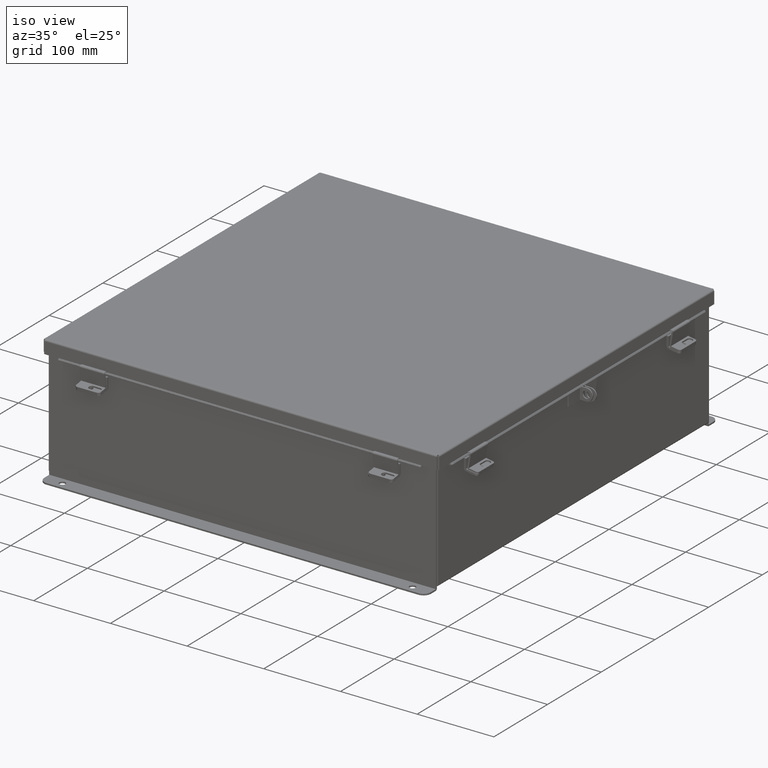
[diagram: clean part render]
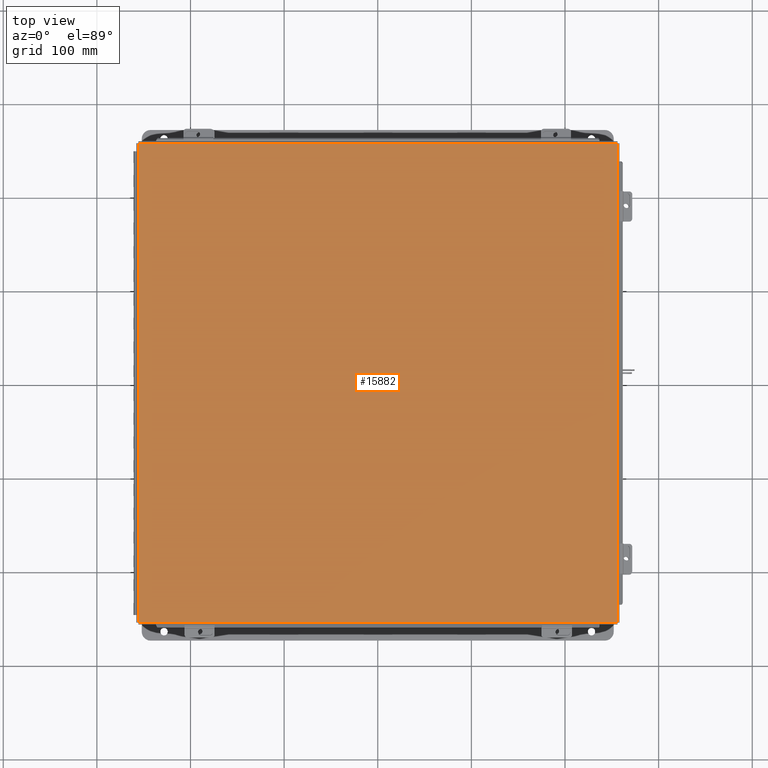
[diagram: tour spotlight — one face highlighted and labeled with its STEP entity id]
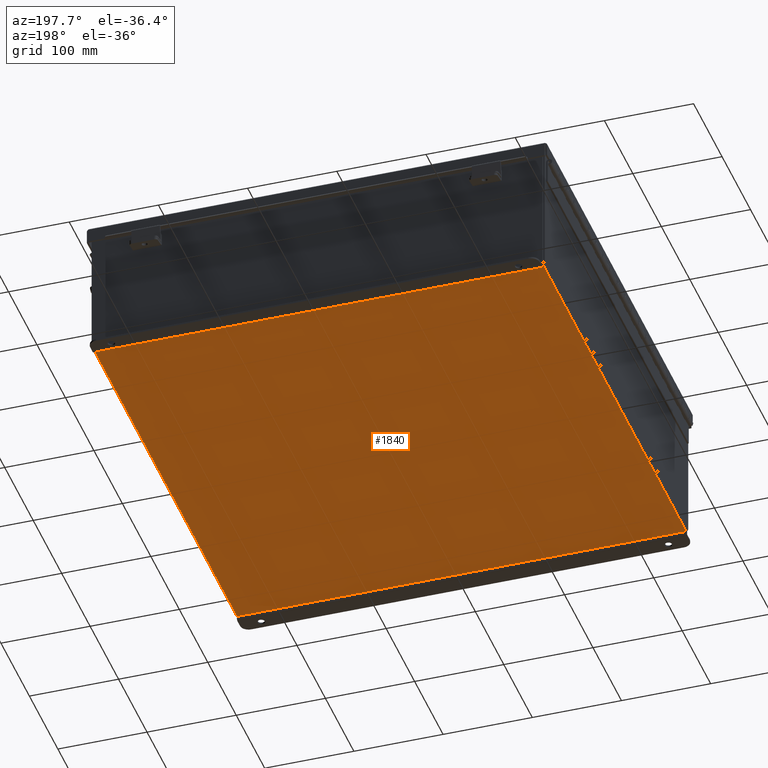
[diagram: tour spotlight — one face highlighted and labeled with its STEP entity id]
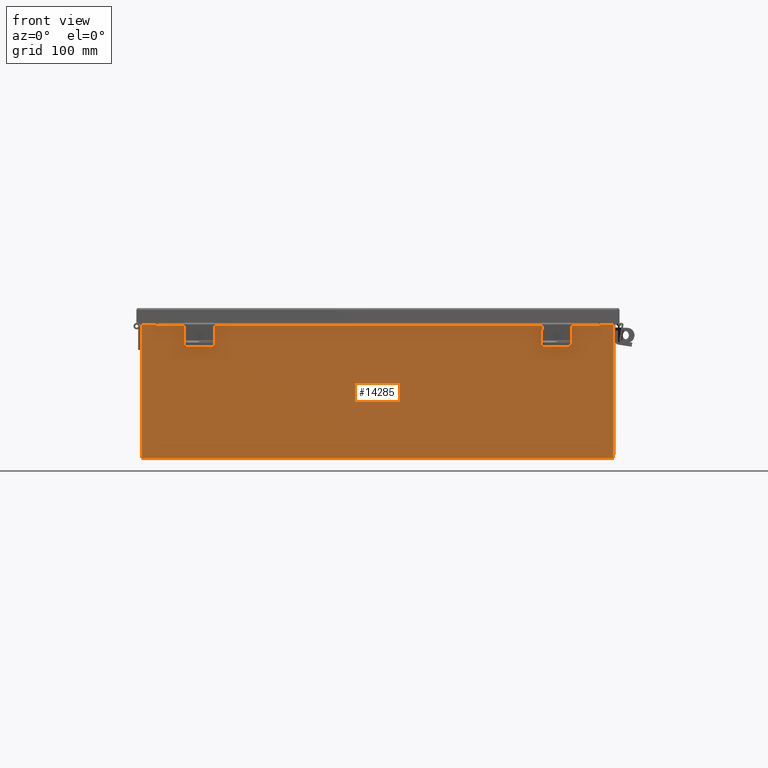
[diagram: tour spotlight — one face highlighted and labeled with its STEP entity id]
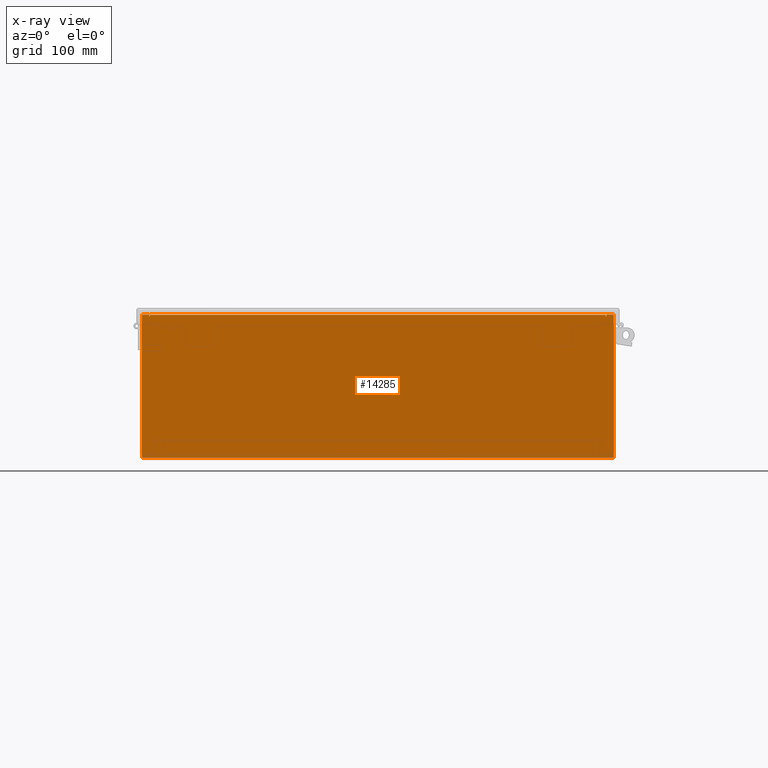
[diagram: x-ray of the same camera — body ghosted, this tour face saturated]
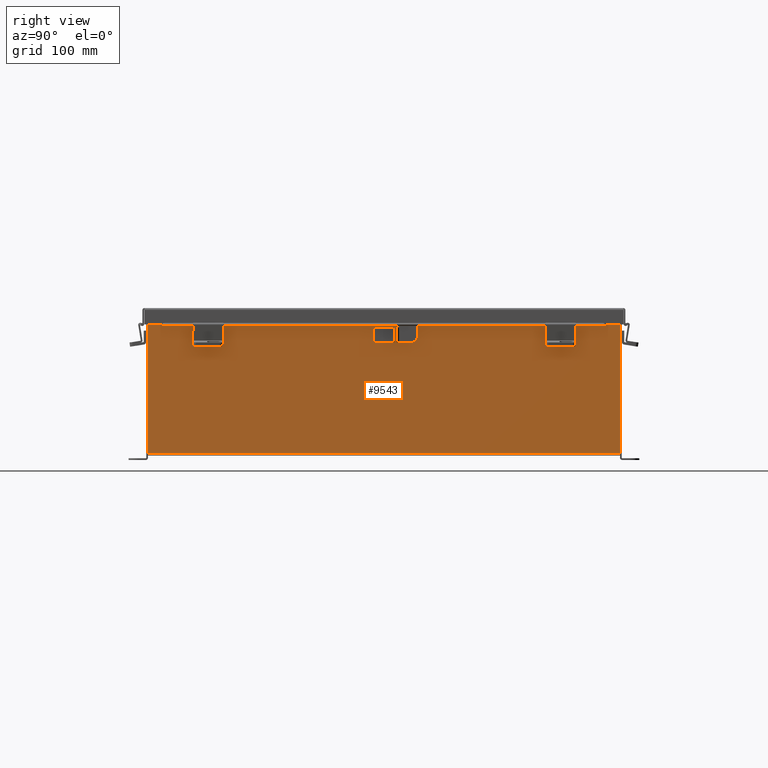
[diagram: tour spotlight — one face highlighted and labeled with its STEP entity id]
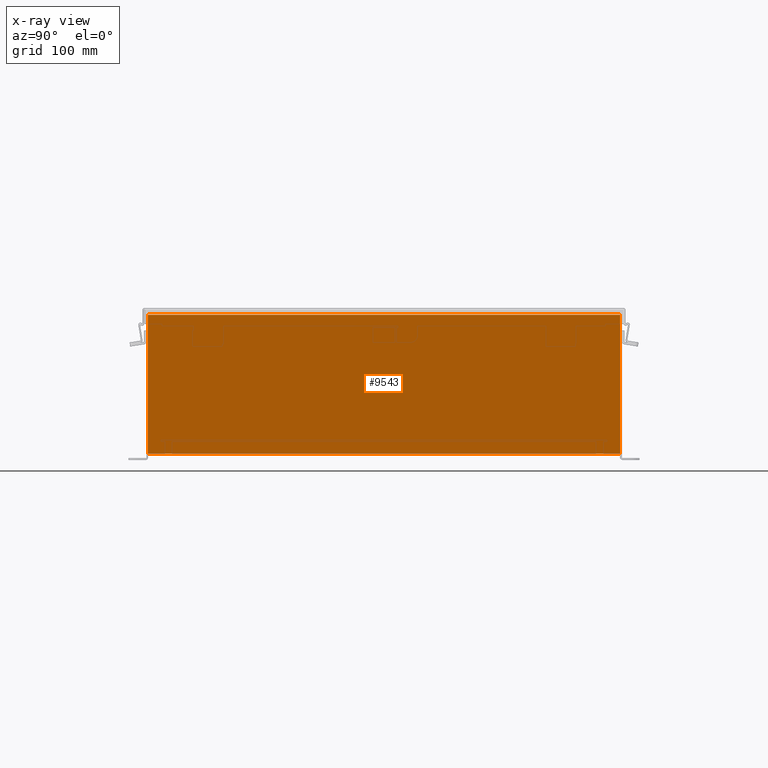
[diagram: x-ray of the same camera — body ghosted, this tour face saturated]
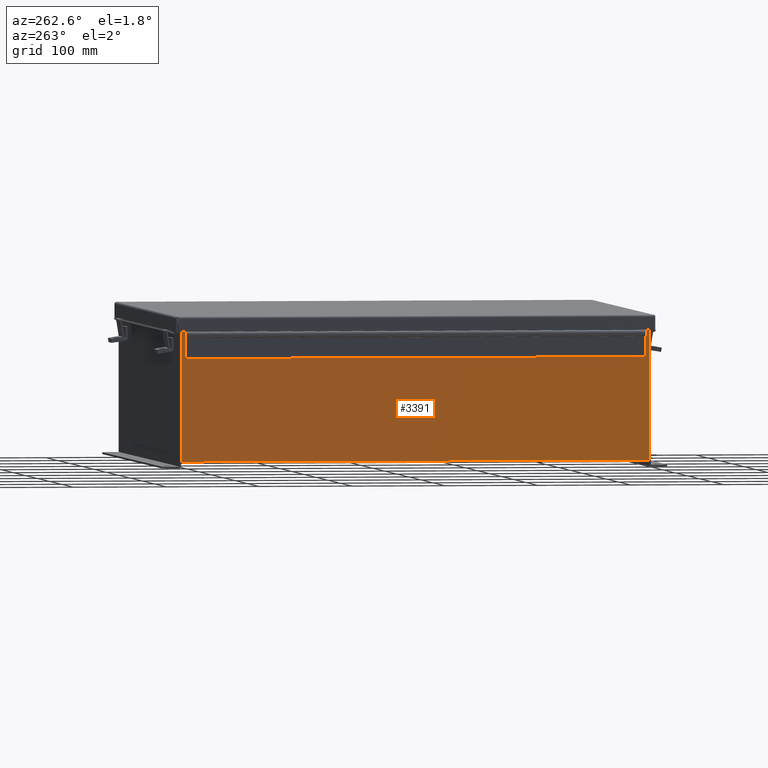
[diagram: tour spotlight — one face highlighted and labeled with its STEP entity id]
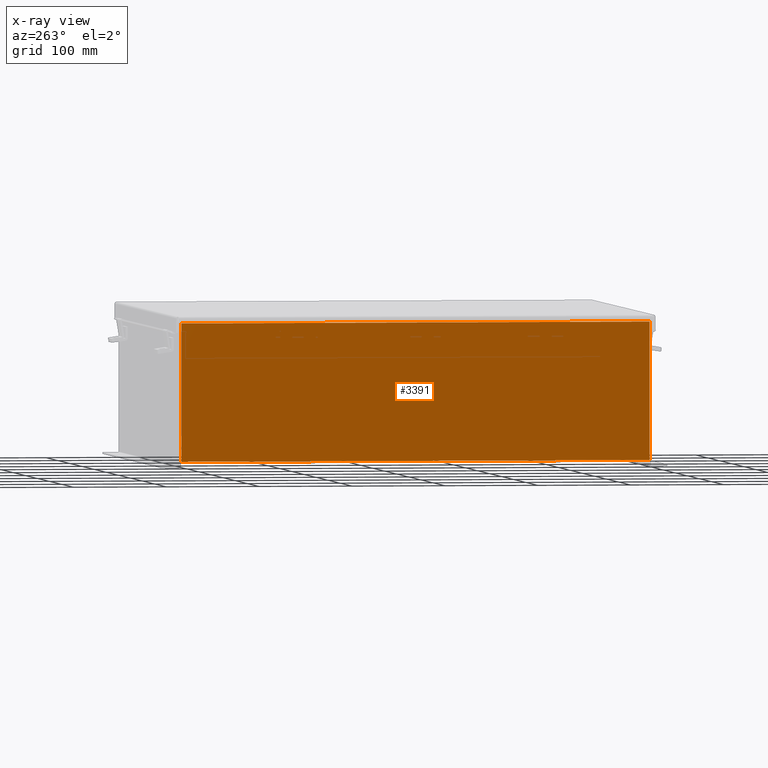
[diagram: x-ray of the same camera — body ghosted, this tour face saturated]
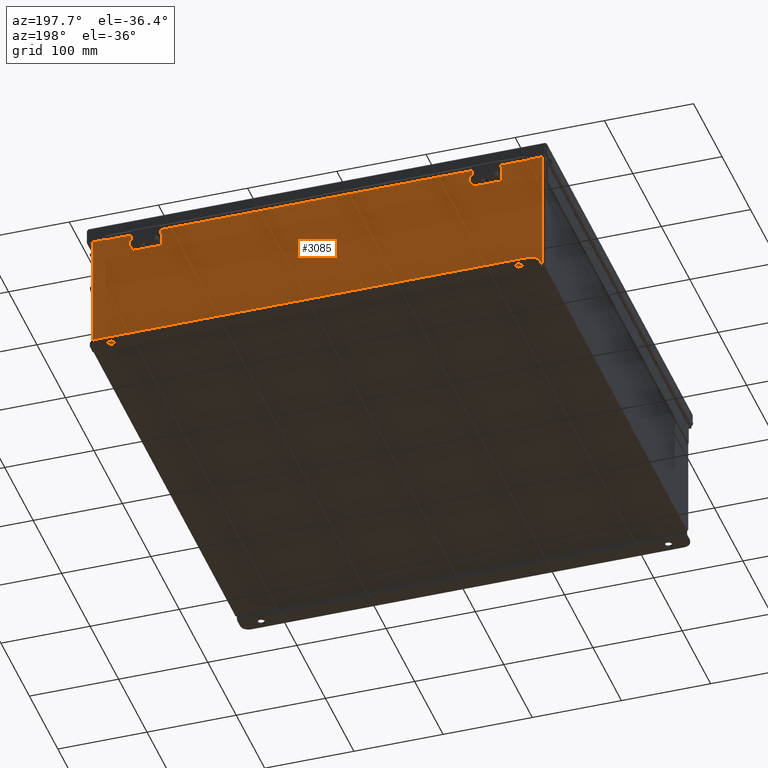
[diagram: tour spotlight — one face highlighted and labeled with its STEP entity id]
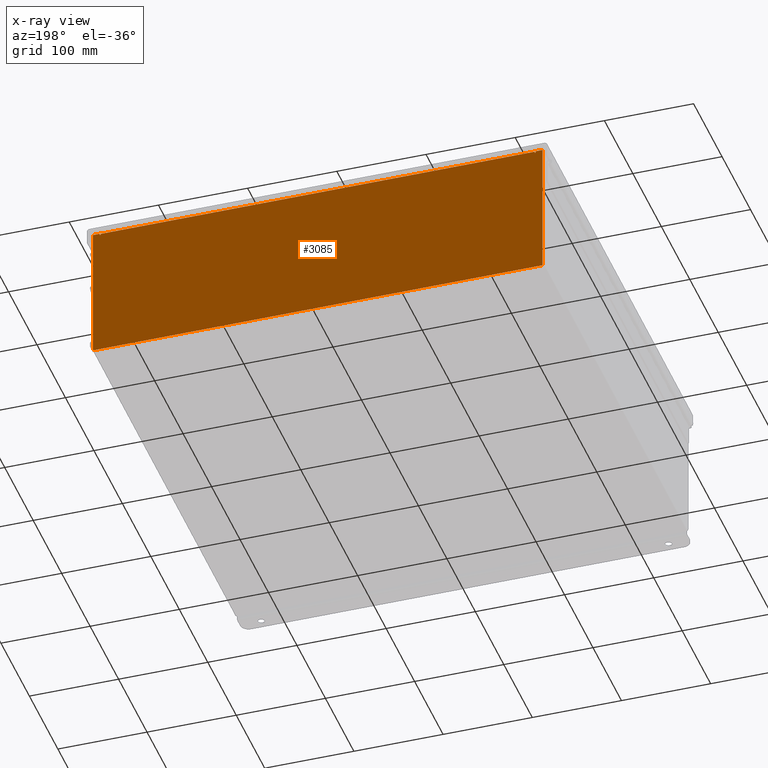
[diagram: x-ray of the same camera — body ghosted, this tour face saturated]
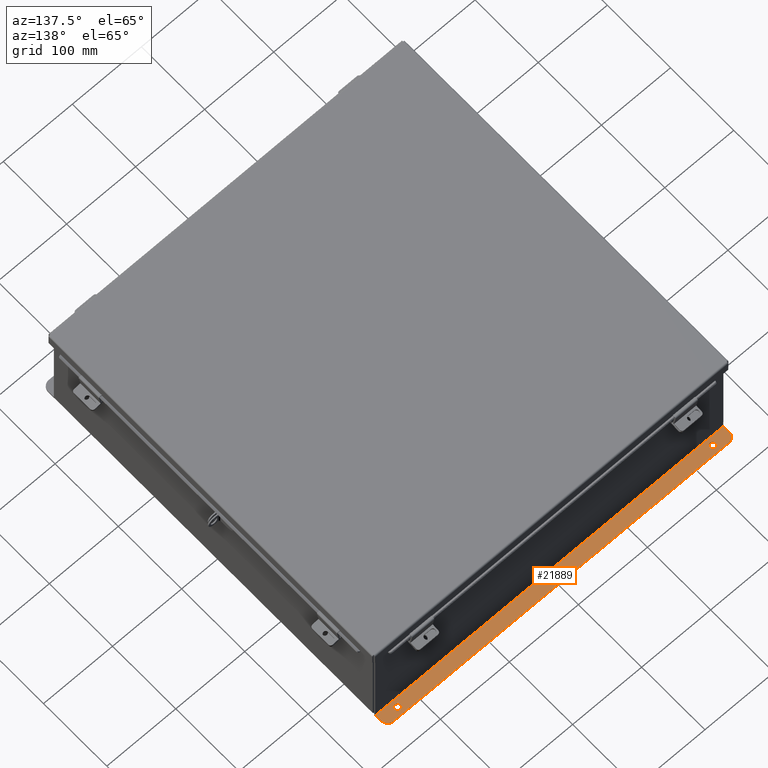
[diagram: tour spotlight — one face highlighted and labeled with its STEP entity id]
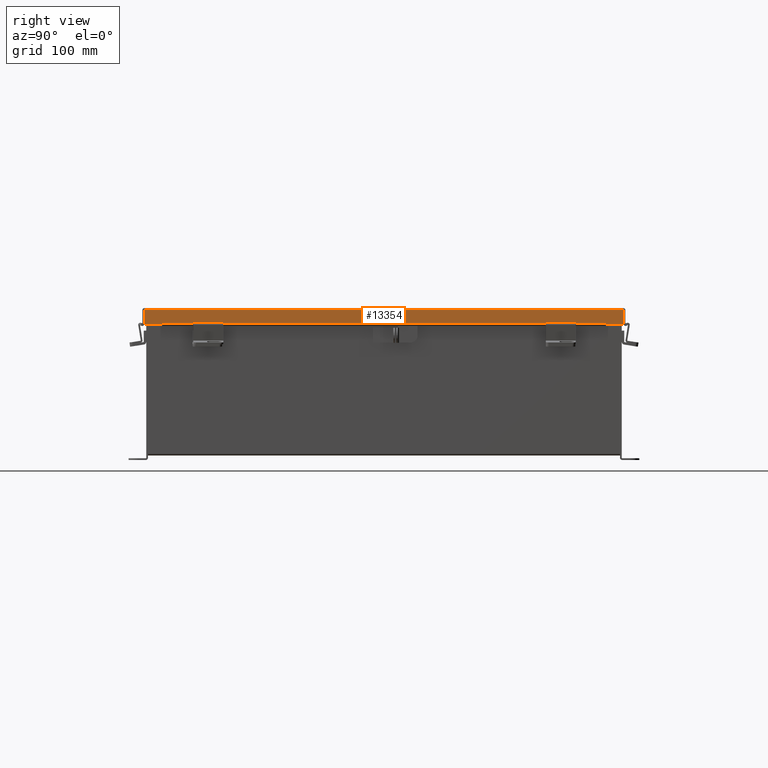
[diagram: tour spotlight — one face highlighted and labeled with its STEP entity id]
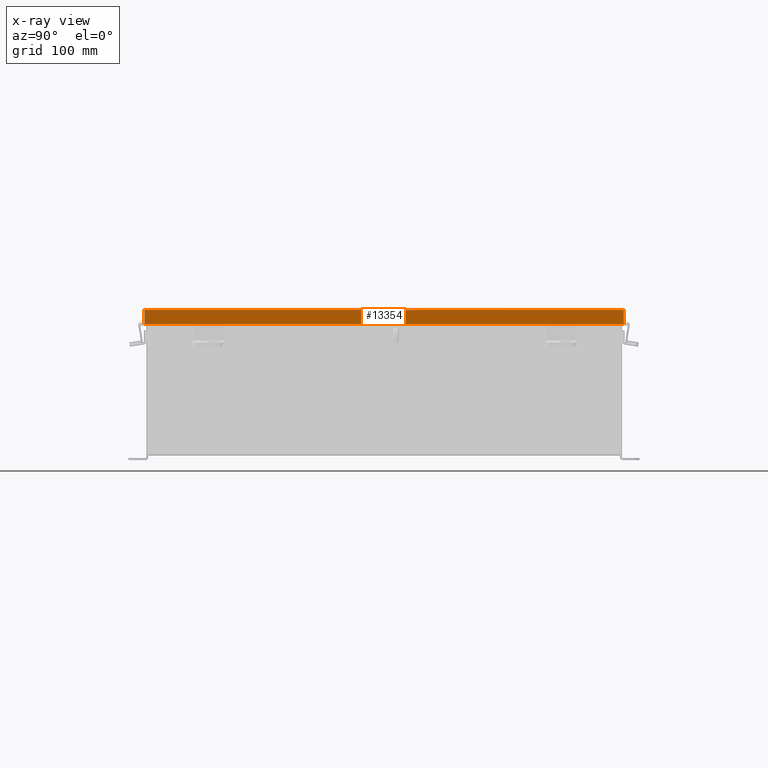
[diagram: x-ray of the same camera — body ghosted, this tour face saturated]
A machine part: a face-by-face anatomy tour. The part has 938 B-rep faces; the first image is the clean iso view, then the 8 largest visible faces are spotlighted one at a time (largest first), each with its STEP entity span.

Face 1 — top view, entity #15882. In plain terms, the highlighted planar face has unit normal (-0, -0, 1).
Definition (entity closure, byte-faithful):
#867 = EDGE_CURVE ( 'NONE', #2011, #14351, #18579, .T. ) ;
#1413 = PLANE ( 'NONE',  #20301 ) ;
#2011 = VERTEX_POINT ( 'NONE', #15025 ) ;
#2658 = EDGE_CURVE ( 'NONE', #14351, #10538, #15839, .T. ) ;
#2768 = EDGE_CURVE ( 'NONE', #10538, #10457, #13107, .T. ) ;
#3158 = DIRECTION ( 'NONE',  ( 2.258600338820354400E-033, 1.000000000000000000, -0.0000000000000000000 ) ) ;
#3527 = CARTESIAN_POINT ( 'NONE',  ( -10.06854999999999700, -10.07447893218814800, -0.07469999999999142600 ) ) ;
#4880 = DIRECTION ( 'NONE',  ( -1.000000000000000000, -2.258600338820354400E-033, 0.0000000000000000000 ) ) ;
#6913 = EDGE_CURVE ( 'NONE', #10457, #2011, #13506, .T. ) ;
#7722 = VECTOR ( 'NONE', #9290, 39.37007874015748100 ) ;
#7811 = DIRECTION ( 'NONE',  ( -2.258600338820354400E-033, -1.000000000000000000, -0.0000000000000000000 ) ) ;
#8292 = DIRECTION ( 'NONE',  ( -0.0000000000000000000, 0.0000000000000000000, -1.000000000000000000 ) ) ;
#8517 = VECTOR ( 'NONE', #3158, 39.37007874015748100 ) ;
#8902 = VECTOR ( 'NONE', #19300, 39.37007874015748100 ) ;
#9290 = DIRECTION ( 'NONE',  ( -1.000000000000000000, 8.418935186496220000E-033, -8.208677865577579800E-017 ) ) ;
#9389 = VECTOR ( 'NONE', #7811, 39.37007874015748100 ) ;
#9434 = CARTESIAN_POINT ( 'NONE',  ( 10.07447893218813400, -10.06855000000001400, -0.07469999999999797600 ) ) ;
#10457 = VERTEX_POINT ( 'NONE', #22186 ) ;
#10538 = VERTEX_POINT ( 'NONE', #18910 ) ;
#11558 = FACE_OUTER_BOUND ( 'NONE', #21979, .T. ) ;
#12597 = ORIENTED_EDGE ( 'NONE', *, *, #2658, .T. ) ;
#13107 = LINE ( 'NONE', #3527, #8517 ) ;
#13506 = LINE ( 'NONE', #14111, #8902 ) ;
#13612 = ORIENTED_EDGE ( 'NONE', *, *, #6913, .T. ) ;
#14111 = CARTESIAN_POINT ( 'NONE',  ( -10.07447893218813200, 10.06854999999998400, -0.07470000000000015500 ) ) ;
#14351 = VERTEX_POINT ( 'NONE', #19462 ) ;
#15025 = CARTESIAN_POINT ( 'NONE',  ( 10.06855000000000000, 10.06854999999998100, -0.07469999999999907300 ) ) ;
#15839 = LINE ( 'NONE', #9434, #7722 ) ;
#15882 = ADVANCED_FACE ( 'NONE', ( #11558 ), #1413, .T. ) ;
#16320 = ORIENTED_EDGE ( 'NONE', *, *, #867, .T. ) ;
#18579 = LINE ( 'NONE', #19503, #9389 ) ;
#18910 = CARTESIAN_POINT ( 'NONE',  ( -10.06854999999999700, -10.06855000000001400, -0.07469999999999142600 ) ) ;
#19300 = DIRECTION ( 'NONE',  ( 1.000000000000000000, 2.258600338820354400E-033, -0.0000000000000000000 ) ) ;
#19462 = CARTESIAN_POINT ( 'NONE',  ( 10.06855000000000000, -10.06855000000001400, -0.07469999999999797600 ) ) ;
#19503 = CARTESIAN_POINT ( 'NONE',  ( 10.06855000000000000, 10.07447893218811600, -0.07469999999999907300 ) ) ;
#20301 = AXIS2_PLACEMENT_3D ( 'NONE', #20385, #8292, #4880 ) ;
#20385 = CARTESIAN_POINT ( 'NONE',  ( 0.0000000000000000000, 0.0000000000000000000, -0.07470000000000015500 ) ) ;
#20921 = ORIENTED_EDGE ( 'NONE', *, *, #2768, .T. ) ;
#21979 = EDGE_LOOP ( 'NONE', ( #13612, #16320, #12597, #20921 ) ) ;
#22186 = CARTESIAN_POINT ( 'NONE',  ( -10.06854999999999700, 10.06854999999998400, -0.07470000000000015500 ) ) ;

Face 2 — auxiliary view, entity #1840. In plain terms, the highlighted planar face has unit normal (0, 0, -1).
Definition (entity closure, byte-faithful):
#203 = DIRECTION ( 'NONE',  ( -0.0000000000000000000, -1.000000000000000000, -0.0000000000000000000 ) ) ;
#555 = LINE ( 'NONE', #17603, #10311 ) ;
#1300 = LINE ( 'NONE', #22309, #11047 ) ;
#1840 = ADVANCED_FACE ( 'NONE', ( #3641 ), #17342, .T. ) ;
#3641 = FACE_OUTER_BOUND ( 'NONE', #17916, .T. ) ;
#3745 = DIRECTION ( 'NONE',  ( 1.000000000000000000, 0.0000000000000000000, 0.0000000000000000000 ) ) ;
#4571 = VERTEX_POINT ( 'NONE', #11816 ) ;
#4945 = LINE ( 'NONE', #10567, #13602 ) ;
#6928 = VERTEX_POINT ( 'NONE', #14061 ) ;
#7099 = DIRECTION ( 'NONE',  ( 0.0000000000000000000, 0.0000000000000000000, -1.000000000000000000 ) ) ;
#8697 = CARTESIAN_POINT ( 'NONE',  ( 9.912300000000001900, 9.925299999999998200, -0.07469999999999994700 ) ) ;
#8940 = ORIENTED_EDGE ( 'NONE', *, *, #13124, .T. ) ;
#9190 = LINE ( 'NONE', #10809, #17833 ) ;
#9373 = VERTEX_POINT ( 'NONE', #8697 ) ;
#10311 = VECTOR ( 'NONE', #19355, 39.37007874015748100 ) ;
#10567 = CARTESIAN_POINT ( 'NONE',  ( 9.912300000000001900, 9.925300000000001800, -0.07469999999999994700 ) ) ;
#10809 = CARTESIAN_POINT ( 'NONE',  ( -9.999999999999998200, -9.925299999999998200, -0.07470000000000000300 ) ) ;
#10822 = AXIS2_PLACEMENT_3D ( 'NONE', #19229, #7099, #14016 ) ;
#11047 = VECTOR ( 'NONE', #11948, 39.37007874015748100 ) ;
#11268 = EDGE_CURVE ( 'NONE', #9373, #13345, #4945, .T. ) ;
#11737 = ORIENTED_EDGE ( 'NONE', *, *, #15421, .F. ) ;
#11816 = CARTESIAN_POINT ( 'NONE',  ( -9.912299999999998300, -9.925299999999992900, -0.07469999999999994700 ) ) ;
#11948 = DIRECTION ( 'NONE',  ( -1.000000000000000000, -0.0000000000000000000, -0.0000000000000000000 ) ) ;
#12989 = CARTESIAN_POINT ( 'NONE',  ( 9.912300000000001900, -9.925299999999998200, -0.07470000000000000300 ) ) ;
#13124 = EDGE_CURVE ( 'NONE', #4571, #6928, #555, .T. ) ;
#13345 = VERTEX_POINT ( 'NONE', #12989 ) ;
#13602 = VECTOR ( 'NONE', #203, 39.37007874015748100 ) ;
#13697 = EDGE_CURVE ( 'NONE', #4571, #13345, #9190, .T. ) ;
#14016 = DIRECTION ( 'NONE',  ( -1.000000000000000000, 0.0000000000000000000, -0.0000000000000000000 ) ) ;
#14061 = CARTESIAN_POINT ( 'NONE',  ( -9.912299999999998300, 9.925300000000001800, -0.07470000000000000300 ) ) ;
#15421 = EDGE_CURVE ( 'NONE', #9373, #6928, #1300, .T. ) ;
#16191 = ORIENTED_EDGE ( 'NONE', *, *, #13697, .F. ) ;
#17342 = PLANE ( 'NONE',  #10822 ) ;
#17603 = CARTESIAN_POINT ( 'NONE',  ( -9.912299999999998300, -9.925299999999998200, -0.07469999999999994700 ) ) ;
#17833 = VECTOR ( 'NONE', #3745, 39.37007874015748100 ) ;
#17916 = EDGE_LOOP ( 'NONE', ( #11737, #20954, #16191, #8940 ) ) ;
#19229 = CARTESIAN_POINT ( 'NONE',  ( 0.0000000000000000000, 0.0000000000000000000, -0.07470000000000000300 ) ) ;
#19355 = DIRECTION ( 'NONE',  ( -0.0000000000000000000, 1.000000000000000000, -0.0000000000000000000 ) ) ;
#20954 = ORIENTED_EDGE ( 'NONE', *, *, #11268, .T. ) ;
#22309 = CARTESIAN_POINT ( 'NONE',  ( -9.999999999999998200, 9.925300000000001800, -0.07470000000000000300 ) ) ;

Face 3 — front view, entity #14285. An x-ray twin of the same camera follows (body ghosted, this face saturated) — the face is partly hidden behind the body. In plain terms, the highlighted planar face has unit normal (-0, 1, -0).
Definition (entity closure, byte-faithful):
#24 = AXIS2_PLACEMENT_3D ( 'NONE', #12969, #17999, #3119 ) ;
#70 = CARTESIAN_POINT ( 'NONE',  ( 9.925299999999985800, 1.748382715945128500E-014, 2.925300000000000500 ) ) ;
#765 = VECTOR ( 'NONE', #3676, 39.37007874015748100 ) ;
#1006 = ORIENTED_EDGE ( 'NONE', *, *, #7286, .T. ) ;
#1040 = CARTESIAN_POINT ( 'NONE',  ( -9.925300000000016000, 0.0000000000000000000, 2.925299999999998200 ) ) ;
#1311 = LINE ( 'NONE', #3539, #765 ) ;
#1859 = DIRECTION ( 'NONE',  ( -2.170286390199931800E-014, -7.888609052210118100E-031, -1.000000000000000000 ) ) ;
#1889 = VERTEX_POINT ( 'NONE', #14086 ) ;
#2179 = VECTOR ( 'NONE', #19343, 39.37007874015748100 ) ;
#2232 = CARTESIAN_POINT ( 'NONE',  ( -9.582299999999991200, 2.185478394931410600E-015, 2.912299999999998300 ) ) ;
#2348 = EDGE_CURVE ( 'NONE', #4368, #15765, #12595, .T. ) ;
#2516 = VERTEX_POINT ( 'NONE', #1040 ) ;
#2730 = AXIS2_PLACEMENT_3D ( 'NONE', #19307, #15844, #10707 ) ;
#2869 = CARTESIAN_POINT ( 'NONE',  ( 9.582300000000001800, 0.0000000000000000000, -4.370956789862821100E-015 ) ) ;
#2922 = LINE ( 'NONE', #19993, #15677 ) ;
#3119 = DIRECTION ( 'NONE',  ( 0.0000000000000000000, 0.0000000000000000000, -1.000000000000000000 ) ) ;
#3154 = CARTESIAN_POINT ( 'NONE',  ( 9.925299999999985800, 1.748382715945128500E-014, 2.925300000000000500 ) ) ;
#3188 = CARTESIAN_POINT ( 'NONE',  ( -9.925299999999996500, -2.185478394931410600E-015, -3.099300000000004400 ) ) ;
#3468 = FACE_OUTER_BOUND ( 'NONE', #4183, .T. ) ;
#3539 = CARTESIAN_POINT ( 'NONE',  ( -9.619649999999998300, 0.0000000000000000000, 0.0000000000000000000 ) ) ;
#3559 = VECTOR ( 'NONE', #18751, 39.37007874015748100 ) ;
#3676 = DIRECTION ( 'NONE',  ( 0.0000000000000000000, 0.0000000000000000000, 1.000000000000000000 ) ) ;
#4180 = ORIENTED_EDGE ( 'NONE', *, *, #12353, .T. ) ;
#4183 = EDGE_LOOP ( 'NONE', ( #6565, #15007, #21882, #1006, #13810, #15082, #20681, #11328, #4180, #16715, #12648, #16923 ) ) ;
#4232 = EDGE_CURVE ( 'NONE', #15765, #9834, #21183, .T. ) ;
#4281 = DIRECTION ( 'NONE',  ( 1.000000000000000000, 4.910036603141682400E-031, 0.0000000000000000000 ) ) ;
#4325 = CARTESIAN_POINT ( 'NONE',  ( 9.582300000000010700, 1.748382715945128500E-014, 2.874949999999998300 ) ) ;
#4368 = VERTEX_POINT ( 'NONE', #6146 ) ;
#4924 = VECTOR ( 'NONE', #4948, 39.37007874015748100 ) ;
#4948 = DIRECTION ( 'NONE',  ( 1.000000000000000000, 4.910036603141682400E-031, -0.0000000000000000000 ) ) ;
#5096 = CARTESIAN_POINT ( 'NONE',  ( -9.925299999999992900, -2.185478394931410600E-015, -3.099300000000004400 ) ) ;
#5200 = CARTESIAN_POINT ( 'NONE',  ( -9.925300000000016000, 0.0000000000000000000, 2.925299999999998200 ) ) ;
#6146 = CARTESIAN_POINT ( 'NONE',  ( 9.619650000000012500, 1.748382715945128500E-014, 2.925300000000001800 ) ) ;
#6172 = EDGE_CURVE ( 'NONE', #18331, #2516, #20036, .T. ) ;
#6296 = VERTEX_POINT ( 'NONE', #21909 ) ;
#6333 = LINE ( 'NONE', #16471, #16604 ) ;
#6345 = CARTESIAN_POINT ( 'NONE',  ( 9.619650000000010700, 1.748382715945128500E-014, 2.874949999999998300 ) ) ;
#6391 = CARTESIAN_POINT ( 'NONE',  ( 9.925300000000000000, 0.0000000000000000000, -3.099299999999999900 ) ) ;
#6437 = CARTESIAN_POINT ( 'NONE',  ( -9.582299999999998300, 0.0000000000000000000, 0.0000000000000000000 ) ) ;
#6565 = ORIENTED_EDGE ( 'NONE', *, *, #7939, .F. ) ;
#6842 = VERTEX_POINT ( 'NONE', #2232 ) ;
#7286 = EDGE_CURVE ( 'NONE', #6842, #6296, #2922, .T. ) ;
#7939 = EDGE_CURVE ( 'NONE', #1889, #20371, #1311, .T. ) ;
#8172 = LINE ( 'NONE', #3154, #3559 ) ;
#8245 = AXIS2_PLACEMENT_3D ( 'NONE', #20079, #9725, #21840 ) ;
#9725 = DIRECTION ( 'NONE',  ( 4.910036603141682400E-031, 1.000000000000000000, -0.0000000000000000000 ) ) ;
#9834 = VERTEX_POINT ( 'NONE', #4325 ) ;
#10386 = LINE ( 'NONE', #6437, #13874 ) ;
#10707 = DIRECTION ( 'NONE',  ( 0.0000000000000000000, 0.0000000000000000000, -1.000000000000000000 ) ) ;
#10917 = EDGE_CURVE ( 'NONE', #2516, #20371, #6333, .T. ) ;
#11056 = EDGE_CURVE ( 'NONE', #6842, #14578, #10386, .T. ) ;
#11143 = VECTOR ( 'NONE', #21952, 39.37007874015748100 ) ;
#11328 = ORIENTED_EDGE ( 'NONE', *, *, #18400, .T. ) ;
#12167 = DIRECTION ( 'NONE',  ( 1.000000000000000000, 4.910036603141682400E-031, 0.0000000000000000000 ) ) ;
#12353 = EDGE_CURVE ( 'NONE', #13572, #14627, #8172, .T. ) ;
#12595 = LINE ( 'NONE', #16606, #22360 ) ;
#12648 = ORIENTED_EDGE ( 'NONE', *, *, #6172, .T. ) ;
#12742 = EDGE_CURVE ( 'NONE', #9834, #6296, #15206, .T. ) ;
#12969 = CARTESIAN_POINT ( 'NONE',  ( 9.600975000000010700, 1.748382715945128500E-014, 2.874949999999998300 ) ) ;
#13089 = CARTESIAN_POINT ( 'NONE',  ( -9.582299999999991200, 0.0000000000000000000, 2.874949999999998300 ) ) ;
#13572 = VERTEX_POINT ( 'NONE', #70 ) ;
#13810 = ORIENTED_EDGE ( 'NONE', *, *, #12742, .F. ) ;
#13874 = VECTOR ( 'NONE', #18503, 39.37007874015748100 ) ;
#13908 = EDGE_CURVE ( 'NONE', #14578, #1889, #18092, .T. ) ;
#14086 = CARTESIAN_POINT ( 'NONE',  ( -9.619649999999991200, 0.0000000000000000000, 2.874949999999998300 ) ) ;
#14285 = ADVANCED_FACE ( 'NONE', ( #3468 ), #21069, .F. ) ;
#14415 = CARTESIAN_POINT ( 'NONE',  ( -9.619649999999991200, 0.0000000000000000000, 2.925299999999999600 ) ) ;
#14578 = VERTEX_POINT ( 'NONE', #13089 ) ;
#14627 = VERTEX_POINT ( 'NONE', #6391 ) ;
#15007 = ORIENTED_EDGE ( 'NONE', *, *, #13908, .F. ) ;
#15082 = ORIENTED_EDGE ( 'NONE', *, *, #4232, .F. ) ;
#15206 = LINE ( 'NONE', #2869, #11143 ) ;
#15677 = VECTOR ( 'NONE', #19847, 39.37007874015748100 ) ;
#15765 = VERTEX_POINT ( 'NONE', #6345 ) ;
#15844 = DIRECTION ( 'NONE',  ( -4.910036603141682400E-031, -1.000000000000000000, -0.0000000000000000000 ) ) ;
#16471 = CARTESIAN_POINT ( 'NONE',  ( -9.925300000000016000, 0.0000000000000000000, 2.925299999999998200 ) ) ;
#16604 = VECTOR ( 'NONE', #4281, 39.37007874015748100 ) ;
#16606 = CARTESIAN_POINT ( 'NONE',  ( 9.619649999999939600, 0.0000000000000000000, -2.087131867159497100E-013 ) ) ;
#16715 = ORIENTED_EDGE ( 'NONE', *, *, #20730, .F. ) ;
#16923 = ORIENTED_EDGE ( 'NONE', *, *, #10917, .T. ) ;
#17675 = VECTOR ( 'NONE', #12167, 39.37007874015748100 ) ;
#17951 = CARTESIAN_POINT ( 'NONE',  ( -9.925300000000016000, 0.0000000000000000000, 2.925299999999998200 ) ) ;
#17999 = DIRECTION ( 'NONE',  ( 4.910036603141682400E-031, 1.000000000000000000, -0.0000000000000000000 ) ) ;
#18092 = CIRCLE ( 'NONE', #8245, 0.01867500000000003900 ) ;
#18331 = VERTEX_POINT ( 'NONE', #5096 ) ;
#18400 = EDGE_CURVE ( 'NONE', #4368, #13572, #22308, .T. ) ;
#18503 = DIRECTION ( 'NONE',  ( 0.0000000000000000000, 0.0000000000000000000, -1.000000000000000000 ) ) ;
#18724 = LINE ( 'NONE', #3188, #4924 ) ;
#18751 = DIRECTION ( 'NONE',  ( -3.735477378271307500E-016, 0.0000000000000000000, -1.000000000000000000 ) ) ;
#19307 = CARTESIAN_POINT ( 'NONE',  ( 0.0000000000000000000, 0.0000000000000000000, 0.0000000000000000000 ) ) ;
#19343 = DIRECTION ( 'NONE',  ( 0.0000000000000000000, 0.0000000000000000000, 1.000000000000000000 ) ) ;
#19847 = DIRECTION ( 'NONE',  ( 1.000000000000000000, 4.910036603141682400E-031, -0.0000000000000000000 ) ) ;
#19993 = CARTESIAN_POINT ( 'NONE',  ( -9.582299999999989400, 2.185478394931410600E-015, 2.912299999999998300 ) ) ;
#20036 = LINE ( 'NONE', #17951, #2179 ) ;
#20079 = CARTESIAN_POINT ( 'NONE',  ( -9.600974999999989400, 0.0000000000000000000, 2.874949999999998300 ) ) ;
#20371 = VERTEX_POINT ( 'NONE', #14415 ) ;
#20681 = ORIENTED_EDGE ( 'NONE', *, *, #2348, .F. ) ;
#20730 = EDGE_CURVE ( 'NONE', #18331, #14627, #18724, .T. ) ;
#21069 = PLANE ( 'NONE',  #2730 ) ;
#21183 = CIRCLE ( 'NONE', #24, 0.01867500000000003900 ) ;
#21840 = DIRECTION ( 'NONE',  ( 0.0000000000000000000, 0.0000000000000000000, -1.000000000000000000 ) ) ;
#21882 = ORIENTED_EDGE ( 'NONE', *, *, #11056, .F. ) ;
#21909 = CARTESIAN_POINT ( 'NONE',  ( 9.582300000000010700, 1.748382715945128500E-014, 2.912299999999998300 ) ) ;
#21952 = DIRECTION ( 'NONE',  ( 0.0000000000000000000, 0.0000000000000000000, 1.000000000000000000 ) ) ;
#22308 = LINE ( 'NONE', #5200, #17675 ) ;
#22360 = VECTOR ( 'NONE', #1859, 39.37007874015748100 ) ;

Face 4 — right view, entity #9543. An x-ray twin of the same camera follows (body ghosted, this face saturated) — the face is partly hidden behind the body. In plain terms, the highlighted planar face has unit normal (-1, 0, 0).
Definition (entity closure, byte-faithful):
#849 = DIRECTION ( 'NONE',  ( -1.000000000000000000, 0.0000000000000000000, 3.361929640444175900E-015 ) ) ;
#982 = CARTESIAN_POINT ( 'NONE',  ( 10.00000000000002300, -9.925299999999998200, 5.837599999999999200 ) ) ;
#994 = EDGE_LOOP ( 'NONE', ( #9827, #11231, #13638, #21794 ) ) ;
#1083 = VERTEX_POINT ( 'NONE', #15990 ) ;
#1376 = EDGE_CURVE ( 'NONE', #6573, #17513, #8283, .T. ) ;
#3565 = CARTESIAN_POINT ( 'NONE',  ( 10.00000000000000200, -9.925299999999998200, -3.388345214641706500E-014 ) ) ;
#3671 = VECTOR ( 'NONE', #7037, 39.37007874015748100 ) ;
#3928 = PLANE ( 'NONE',  #6749 ) ;
#4144 = LINE ( 'NONE', #4695, #17420 ) ;
#4498 = EDGE_CURVE ( 'NONE', #1083, #6573, #11160, .T. ) ;
#4555 = LINE ( 'NONE', #3565, #17811 ) ;
#4695 = CARTESIAN_POINT ( 'NONE',  ( 10.00000000000000200, -9.925299999999998200, 0.01299999999999985900 ) ) ;
#6112 = FACE_OUTER_BOUND ( 'NONE', #994, .T. ) ;
#6467 = DIRECTION ( 'NONE',  ( -0.0000000000000000000, -1.000000000000000000, -0.0000000000000000000 ) ) ;
#6573 = VERTEX_POINT ( 'NONE', #9123 ) ;
#6749 = AXIS2_PLACEMENT_3D ( 'NONE', #11227, #849, #12941 ) ;
#7037 = DIRECTION ( 'NONE',  ( -0.0000000000000000000, -1.000000000000000000, -0.0000000000000000000 ) ) ;
#8283 = LINE ( 'NONE', #16656, #3671 ) ;
#9123 = CARTESIAN_POINT ( 'NONE',  ( 10.00000000000002300, 9.925299999999996500, 5.837599999999999200 ) ) ;
#9543 = ADVANCED_FACE ( 'NONE', ( #6112 ), #3928, .F. ) ;
#9827 = ORIENTED_EDGE ( 'NONE', *, *, #1376, .T. ) ;
#11160 = LINE ( 'NONE', #20336, #15755 ) ;
#11227 = CARTESIAN_POINT ( 'NONE',  ( 10.00000000000000200, 0.0000000000000000000, -3.388345214641706500E-014 ) ) ;
#11231 = ORIENTED_EDGE ( 'NONE', *, *, #14220, .T. ) ;
#12941 = DIRECTION ( 'NONE',  ( 3.361929640444175900E-015, 0.0000000000000000000, 1.000000000000000000 ) ) ;
#13638 = ORIENTED_EDGE ( 'NONE', *, *, #18199, .F. ) ;
#14220 = EDGE_CURVE ( 'NONE', #17513, #15153, #4555, .T. ) ;
#14589 = CARTESIAN_POINT ( 'NONE',  ( 10.00000000000000200, -9.925299999999998200, 0.01299999999999985900 ) ) ;
#15153 = VERTEX_POINT ( 'NONE', #14589 ) ;
#15755 = VECTOR ( 'NONE', #16880, 39.37007874015748100 ) ;
#15990 = CARTESIAN_POINT ( 'NONE',  ( 10.00000000000000200, 9.925299999999998200, 0.01299999999999985900 ) ) ;
#16656 = CARTESIAN_POINT ( 'NONE',  ( 10.00000000000002300, 9.925299999999998200, 5.837599999999999200 ) ) ;
#16880 = DIRECTION ( 'NONE',  ( 3.361929640444176300E-015, -3.735477378271307500E-016, 1.000000000000000000 ) ) ;
#17420 = VECTOR ( 'NONE', #6467, 39.37007874015748100 ) ;
#17513 = VERTEX_POINT ( 'NONE', #982 ) ;
#17811 = VECTOR ( 'NONE', #20901, 39.37007874015748100 ) ;
#18199 = EDGE_CURVE ( 'NONE', #1083, #15153, #4144, .T. ) ;
#20336 = CARTESIAN_POINT ( 'NONE',  ( 10.00000000000000200, 9.925300000000001800, -3.016984628002970700E-014 ) ) ;
#20901 = DIRECTION ( 'NONE',  ( -3.361929640444176300E-015, 0.0000000000000000000, -1.000000000000000000 ) ) ;
#21794 = ORIENTED_EDGE ( 'NONE', *, *, #4498, .T. ) ;

Face 5 — auxiliary view, entity #3391. An x-ray twin of the same camera follows (body ghosted, this face saturated) — the face is partly hidden behind the body. In plain terms, the highlighted planar face has unit normal (1, 0, 0).
Definition (entity closure, byte-faithful):
#123 = DIRECTION ( 'NONE',  ( 3.361929640444176300E-015, 0.0000000000000000000, -1.000000000000000000 ) ) ;
#186 = VECTOR ( 'NONE', #123, 39.37007874015748100 ) ;
#381 = VERTEX_POINT ( 'NONE', #18135 ) ;
#832 = DIRECTION ( 'NONE',  ( -3.361929640444176300E-015, 3.735477378271307500E-016, 1.000000000000000000 ) ) ;
#915 = EDGE_CURVE ( 'NONE', #381, #8367, #12894, .T. ) ;
#1329 = AXIS2_PLACEMENT_3D ( 'NONE', #10222, #20643, #10816 ) ;
#1372 = EDGE_CURVE ( 'NONE', #20934, #381, #16952, .T. ) ;
#1576 = VECTOR ( 'NONE', #832, 39.37007874015748100 ) ;
#2399 = DIRECTION ( 'NONE',  ( -0.0000000000000000000, 1.000000000000000000, -0.0000000000000000000 ) ) ;
#2667 = CARTESIAN_POINT ( 'NONE',  ( -9.999999999999998200, 9.925300000000001800, 0.01299999999999985900 ) ) ;
#3391 = ADVANCED_FACE ( 'NONE', ( #19046 ), #11075, .F. ) ;
#5791 = ORIENTED_EDGE ( 'NONE', *, *, #8015, .F. ) ;
#7296 = CARTESIAN_POINT ( 'NONE',  ( -10.00000000000001800, -9.925299999999991100, 5.837599999999999200 ) ) ;
#7785 = VECTOR ( 'NONE', #2399, 39.37007874015748100 ) ;
#8015 = EDGE_CURVE ( 'NONE', #20948, #8367, #21607, .T. ) ;
#8367 = VERTEX_POINT ( 'NONE', #11340 ) ;
#8982 = CARTESIAN_POINT ( 'NONE',  ( -10.00000000000001800, -9.925299999999992900, 5.837599999999999200 ) ) ;
#10186 = CARTESIAN_POINT ( 'NONE',  ( -9.999999999999998200, 9.925300000000001800, -3.388345214641706500E-014 ) ) ;
#10222 = CARTESIAN_POINT ( 'NONE',  ( -9.999999999999998200, 0.0000000000000000000, -3.388345214641706500E-014 ) ) ;
#10816 = DIRECTION ( 'NONE',  ( 3.361929640444175900E-015, 0.0000000000000000000, -1.000000000000000000 ) ) ;
#11075 = PLANE ( 'NONE',  #1329 ) ;
#11340 = CARTESIAN_POINT ( 'NONE',  ( -9.999999999999998200, 9.925300000000001800, 0.01299999999999985900 ) ) ;
#12282 = EDGE_LOOP ( 'NONE', ( #18506, #21484, #5791, #13277 ) ) ;
#12357 = VECTOR ( 'NONE', #21008, 39.37007874015748100 ) ;
#12894 = LINE ( 'NONE', #10186, #186 ) ;
#13277 = ORIENTED_EDGE ( 'NONE', *, *, #15190, .T. ) ;
#14669 = CARTESIAN_POINT ( 'NONE',  ( -9.999999999999998200, -9.925299999999998200, -3.016984628002970700E-014 ) ) ;
#15190 = EDGE_CURVE ( 'NONE', #20948, #20934, #19421, .T. ) ;
#16952 = LINE ( 'NONE', #8982, #12357 ) ;
#18135 = CARTESIAN_POINT ( 'NONE',  ( -10.00000000000001800, 9.925300000000001800, 5.837599999999999200 ) ) ;
#18506 = ORIENTED_EDGE ( 'NONE', *, *, #1372, .T. ) ;
#19046 = FACE_OUTER_BOUND ( 'NONE', #12282, .T. ) ;
#19379 = CARTESIAN_POINT ( 'NONE',  ( -9.999999999999998200, -9.925299999999992900, 0.01299999999999985900 ) ) ;
#19421 = LINE ( 'NONE', #14669, #1576 ) ;
#20643 = DIRECTION ( 'NONE',  ( 1.000000000000000000, 0.0000000000000000000, 3.361929640444175900E-015 ) ) ;
#20934 = VERTEX_POINT ( 'NONE', #7296 ) ;
#20948 = VERTEX_POINT ( 'NONE', #19379 ) ;
#21008 = DIRECTION ( 'NONE',  ( 0.0000000000000000000, 1.000000000000000000, 0.0000000000000000000 ) ) ;
#21484 = ORIENTED_EDGE ( 'NONE', *, *, #915, .T. ) ;
#21607 = LINE ( 'NONE', #2667, #7785 ) ;

Face 6 — auxiliary view, entity #3085. An x-ray twin of the same camera follows (body ghosted, this face saturated) — the face is partly hidden behind the body. In plain terms, the highlighted planar face has unit normal (0, -1, 0).
Definition (entity closure, byte-faithful):
#64 = EDGE_CURVE ( 'NONE', #15510, #2419, #13182, .T. ) ;
#241 = LINE ( 'NONE', #19827, #9439 ) ;
#315 = LINE ( 'NONE', #6755, #8966 ) ;
#783 = ORIENTED_EDGE ( 'NONE', *, *, #5493, .F. ) ;
#855 = DIRECTION ( 'NONE',  ( 1.000000000000000000, 0.0000000000000000000, 0.0000000000000000000 ) ) ;
#1216 = CARTESIAN_POINT ( 'NONE',  ( -9.619649999999998300, 0.0000000000000000000, 2.925300000000000500 ) ) ;
#1266 = CARTESIAN_POINT ( 'NONE',  ( -9.582299999999998300, 0.0000000000000000000, 0.0000000000000000000 ) ) ;
#1330 = ORIENTED_EDGE ( 'NONE', *, *, #64, .T. ) ;
#1384 = AXIS2_PLACEMENT_3D ( 'NONE', #20676, #10318, #22434 ) ;
#1836 = ORIENTED_EDGE ( 'NONE', *, *, #14509, .T. ) ;
#2333 = VERTEX_POINT ( 'NONE', #14032 ) ;
#2358 = CARTESIAN_POINT ( 'NONE',  ( 9.619650000000001800, 0.0000000000000000000, 2.874949999999998300 ) ) ;
#2419 = VERTEX_POINT ( 'NONE', #1216 ) ;
#2802 = VECTOR ( 'NONE', #15010, 39.37007874015748100 ) ;
#2859 = DIRECTION ( 'NONE',  ( 0.0000000000000000000, -1.000000000000000000, 0.0000000000000000000 ) ) ;
#2902 = VECTOR ( 'NONE', #7277, 39.37007874015748100 ) ;
#3034 = DIRECTION ( 'NONE',  ( 0.0000000000000000000, 0.0000000000000000000, -1.000000000000000000 ) ) ;
#3085 = ADVANCED_FACE ( 'NONE', ( #7182 ), #5631, .F. ) ;
#3392 = DIRECTION ( 'NONE',  ( 1.000000000000000000, -0.0000000000000000000, -0.0000000000000000000 ) ) ;
#3568 = CARTESIAN_POINT ( 'NONE',  ( -9.582299999999998300, 4.370956789862821100E-015, 2.912299999999998300 ) ) ;
#3990 = ORIENTED_EDGE ( 'NONE', *, *, #22320, .T. ) ;
#4438 = CARTESIAN_POINT ( 'NONE',  ( -9.600974999999998300, 0.0000000000000000000, 2.874949999999998300 ) ) ;
#4445 = ORIENTED_EDGE ( 'NONE', *, *, #18865, .F. ) ;
#4914 = DIRECTION ( 'NONE',  ( 0.0000000000000000000, -0.0000000000000000000, -1.000000000000000000 ) ) ;
#4952 = EDGE_CURVE ( 'NONE', #20197, #19402, #19766, .T. ) ;
#4953 = VECTOR ( 'NONE', #3034, 39.37007874015748100 ) ;
#5493 = EDGE_CURVE ( 'NONE', #14910, #14425, #315, .T. ) ;
#5631 = PLANE ( 'NONE',  #19560 ) ;
#5652 = CARTESIAN_POINT ( 'NONE',  ( -9.925299999999998200, 0.0000000000000000000, 2.925300000000000500 ) ) ;
#6202 = DIRECTION ( 'NONE',  ( 0.0000000000000000000, 0.0000000000000000000, -1.000000000000000000 ) ) ;
#6723 = VERTEX_POINT ( 'NONE', #3568 ) ;
#6755 = CARTESIAN_POINT ( 'NONE',  ( 9.619650000000001800, 0.0000000000000000000, 0.0000000000000000000 ) ) ;
#6756 = ORIENTED_EDGE ( 'NONE', *, *, #10321, .T. ) ;
#6980 = CARTESIAN_POINT ( 'NONE',  ( -9.619649999999998300, 0.0000000000000000000, 0.0000000000000000000 ) ) ;
#6981 = CARTESIAN_POINT ( 'NONE',  ( -9.925299999999998200, 0.0000000000000000000, 2.925300000000000500 ) ) ;
#7182 = FACE_OUTER_BOUND ( 'NONE', #9758, .T. ) ;
#7277 = DIRECTION ( 'NONE',  ( 0.0000000000000000000, 0.0000000000000000000, 1.000000000000000000 ) ) ;
#7342 = LINE ( 'NONE', #18907, #16525 ) ;
#7517 = DIRECTION ( 'NONE',  ( 0.0000000000000000000, 0.0000000000000000000, -1.000000000000000000 ) ) ;
#7793 = EDGE_CURVE ( 'NONE', #15640, #2419, #8061, .T. ) ;
#8025 = CARTESIAN_POINT ( 'NONE',  ( -9.925299999999998200, 0.0000000000000000000, 2.925300000000000500 ) ) ;
#8061 = LINE ( 'NONE', #6980, #2902 ) ;
#8867 = CARTESIAN_POINT ( 'NONE',  ( -9.925299999999998200, 0.0000000000000000000, 2.925300000000000500 ) ) ;
#8966 = VECTOR ( 'NONE', #15804, 39.37007874015748100 ) ;
#9344 = ORIENTED_EDGE ( 'NONE', *, *, #4952, .F. ) ;
#9439 = VECTOR ( 'NONE', #855, 39.37007874015748100 ) ;
#9448 = ORIENTED_EDGE ( 'NONE', *, *, #18991, .T. ) ;
#9549 = LINE ( 'NONE', #1266, #4953 ) ;
#9758 = EDGE_LOOP ( 'NONE', ( #20118, #12080, #4445, #1836, #9344, #22192, #783, #6756, #3990, #13526, #9448, #1330 ) ) ;
#10285 = VERTEX_POINT ( 'NONE', #18299 ) ;
#10318 = DIRECTION ( 'NONE',  ( -0.0000000000000000000, 1.000000000000000000, -0.0000000000000000000 ) ) ;
#10321 = EDGE_CURVE ( 'NONE', #14910, #17043, #21237, .T. ) ;
#10587 = VECTOR ( 'NONE', #11855, 39.37007874015748100 ) ;
#10625 = DIRECTION ( 'NONE',  ( -0.0000000000000000000, -0.0000000000000000000, 1.000000000000000000 ) ) ;
#10915 = VECTOR ( 'NONE', #10625, 39.37007874015748100 ) ;
#10924 = EDGE_CURVE ( 'NONE', #18155, #15640, #19564, .T. ) ;
#11110 = CARTESIAN_POINT ( 'NONE',  ( -9.619649999999998300, 0.0000000000000000000, 2.874949999999998300 ) ) ;
#11832 = CARTESIAN_POINT ( 'NONE',  ( 9.582300000000001800, 0.0000000000000000000, 2.912299999999998300 ) ) ;
#11855 = DIRECTION ( 'NONE',  ( 0.0000000000000000000, 0.0000000000000000000, 1.000000000000000000 ) ) ;
#12080 = ORIENTED_EDGE ( 'NONE', *, *, #10924, .F. ) ;
#12669 = AXIS2_PLACEMENT_3D ( 'NONE', #4438, #16552, #6202 ) ;
#12933 = EDGE_CURVE ( 'NONE', #10285, #2333, #7342, .T. ) ;
#12971 = VECTOR ( 'NONE', #7517, 39.37007874015748100 ) ;
#12972 = CARTESIAN_POINT ( 'NONE',  ( 9.582300000000001800, 0.0000000000000000000, 0.0000000000000000000 ) ) ;
#13182 = LINE ( 'NONE', #5652, #21872 ) ;
#13526 = ORIENTED_EDGE ( 'NONE', *, *, #12933, .F. ) ;
#13916 = CARTESIAN_POINT ( 'NONE',  ( 9.619650000000001800, 0.0000000000000000000, 2.925300000000000500 ) ) ;
#14032 = CARTESIAN_POINT ( 'NONE',  ( 9.925300000000001800, 0.0000000000000000000, -3.099299999999999900 ) ) ;
#14425 = VERTEX_POINT ( 'NONE', #2358 ) ;
#14509 = EDGE_CURVE ( 'NONE', #6723, #19402, #241, .T. ) ;
#14910 = VERTEX_POINT ( 'NONE', #13916 ) ;
#15010 = DIRECTION ( 'NONE',  ( 1.000000000000000000, 0.0000000000000000000, 0.0000000000000000000 ) ) ;
#15019 = CARTESIAN_POINT ( 'NONE',  ( -9.582299999999998300, 0.0000000000000000000, 2.874949999999998300 ) ) ;
#15510 = VERTEX_POINT ( 'NONE', #6981 ) ;
#15640 = VERTEX_POINT ( 'NONE', #11110 ) ;
#15734 = CARTESIAN_POINT ( 'NONE',  ( 0.0000000000000000000, 0.0000000000000000000, 0.0000000000000000000 ) ) ;
#15804 = DIRECTION ( 'NONE',  ( 0.0000000000000000000, 0.0000000000000000000, -1.000000000000000000 ) ) ;
#16200 = CARTESIAN_POINT ( 'NONE',  ( 9.925300000000001800, 0.0000000000000000000, 2.925300000000000500 ) ) ;
#16525 = VECTOR ( 'NONE', #3392, 39.37007874015748100 ) ;
#16552 = DIRECTION ( 'NONE',  ( -0.0000000000000000000, 1.000000000000000000, -0.0000000000000000000 ) ) ;
#16958 = CARTESIAN_POINT ( 'NONE',  ( 9.925300000000001800, 0.0000000000000000000, 2.925300000000000500 ) ) ;
#17043 = VERTEX_POINT ( 'NONE', #16958 ) ;
#17067 = DIRECTION ( 'NONE',  ( 1.000000000000000000, 0.0000000000000000000, 0.0000000000000000000 ) ) ;
#18155 = VERTEX_POINT ( 'NONE', #15019 ) ;
#18299 = CARTESIAN_POINT ( 'NONE',  ( -9.925299999999996500, 0.0000000000000000000, -3.099299999999999900 ) ) ;
#18865 = EDGE_CURVE ( 'NONE', #6723, #18155, #9549, .T. ) ;
#18907 = CARTESIAN_POINT ( 'NONE',  ( -9.925299999999998200, 0.0000000000000000000, -3.099299999999999900 ) ) ;
#18991 = EDGE_CURVE ( 'NONE', #10285, #15510, #20095, .T. ) ;
#19402 = VERTEX_POINT ( 'NONE', #11832 ) ;
#19560 = AXIS2_PLACEMENT_3D ( 'NONE', #15734, #2859, #4914 ) ;
#19564 = CIRCLE ( 'NONE', #12669, 0.01867500000000003900 ) ;
#19766 = LINE ( 'NONE', #12972, #10587 ) ;
#19827 = CARTESIAN_POINT ( 'NONE',  ( -9.582299999999998300, 4.370956789862821100E-015, 2.912299999999998300 ) ) ;
#20095 = LINE ( 'NONE', #8867, #10915 ) ;
#20118 = ORIENTED_EDGE ( 'NONE', *, *, #7793, .F. ) ;
#20197 = VERTEX_POINT ( 'NONE', #20704 ) ;
#20676 = CARTESIAN_POINT ( 'NONE',  ( 9.600975000000000000, 0.0000000000000000000, 2.874949999999998300 ) ) ;
#20704 = CARTESIAN_POINT ( 'NONE',  ( 9.582300000000000000, 0.0000000000000000000, 2.874949999999998300 ) ) ;
#20758 = EDGE_CURVE ( 'NONE', #14425, #20197, #22263, .T. ) ;
#21237 = LINE ( 'NONE', #8025, #2802 ) ;
#21872 = VECTOR ( 'NONE', #17067, 39.37007874015748100 ) ;
#22192 = ORIENTED_EDGE ( 'NONE', *, *, #20758, .F. ) ;
#22196 = LINE ( 'NONE', #16200, #12971 ) ;
#22263 = CIRCLE ( 'NONE', #1384, 0.01867500000000003900 ) ;
#22320 = EDGE_CURVE ( 'NONE', #17043, #2333, #22196, .T. ) ;
#22434 = DIRECTION ( 'NONE',  ( 0.0000000000000000000, 0.0000000000000000000, -1.000000000000000000 ) ) ;

Face 7 — auxiliary view, entity #21889. In plain terms, the highlighted planar face has unit normal (0, 0, 1).
Definition (entity closure, byte-faithful):
#85 = DIRECTION ( 'NONE',  ( -0.0000000000000000000, -3.702694488566362300E-015, -1.000000000000000000 ) ) ;
#137 = VERTEX_POINT ( 'NONE', #5824 ) ;
#396 = DIRECTION ( 'NONE',  ( 0.0000000000000000000, -1.000000000000000000, 3.502369222646487400E-015 ) ) ;
#858 = DIRECTION ( 'NONE',  ( -0.0000000000000000000, 1.000000000000000000, -3.702694488566362300E-015 ) ) ;
#1190 = ORIENTED_EDGE ( 'NONE', *, *, #14971, .T. ) ;
#1454 = ORIENTED_EDGE ( 'NONE', *, *, #7376, .F. ) ;
#1914 = EDGE_LOOP ( 'NONE', ( #1454, #18134, #7393, #13325, #6443, #10943 ) ) ;
#1969 = AXIS2_PLACEMENT_3D ( 'NONE', #11552, #21986, #11616 ) ;
#2308 = VERTEX_POINT ( 'NONE', #2914 ) ;
#2432 = CARTESIAN_POINT ( 'NONE',  ( 9.925300000000001800, 0.7378000000000011200, -3.112300000000003000 ) ) ;
#2584 = CARTESIAN_POINT ( 'NONE',  ( -9.925299999999998200, 0.7378000000000011200, -3.112300000000003000 ) ) ;
#2856 = CARTESIAN_POINT ( 'NONE',  ( 9.550300000000001800, 0.3628000000000008400, -3.112300000000001200 ) ) ;
#2914 = CARTESIAN_POINT ( 'NONE',  ( 9.925300000000001800, 0.3628000000000008400, -3.112300000000001200 ) ) ;
#3068 = EDGE_CURVE ( 'NONE', #13937, #21731, #7697, .T. ) ;
#3267 = VERTEX_POINT ( 'NONE', #6925 ) ;
#3649 = VERTEX_POINT ( 'NONE', #22312 ) ;
#3679 = VECTOR ( 'NONE', #9256, 39.37007874015748100 ) ;
#4406 = CARTESIAN_POINT ( 'NONE',  ( -8.987799999999994700, 0.2068000000000006800, -3.112300000000000700 ) ) ;
#4432 = CIRCLE ( 'NONE', #18608, 0.1560000000000001700 ) ;
#4590 = DIRECTION ( 'NONE',  ( 0.0000000000000000000, -1.000000000000000000, 4.370956789862820400E-015 ) ) ;
#4889 = CIRCLE ( 'NONE', #9154, 0.3750000000000000600 ) ;
#5050 = EDGE_CURVE ( 'NONE', #5505, #137, #4889, .T. ) ;
#5397 = VECTOR ( 'NONE', #17225, 39.37007874015748100 ) ;
#5505 = VERTEX_POINT ( 'NONE', #17635 ) ;
#5824 = CARTESIAN_POINT ( 'NONE',  ( -9.925299999999998200, 0.3628000000000008400, -3.112300000000001200 ) ) ;
#6443 = ORIENTED_EDGE ( 'NONE', *, *, #16403, .F. ) ;
#6484 = VERTEX_POINT ( 'NONE', #12826 ) ;
#6925 = CARTESIAN_POINT ( 'NONE',  ( 9.550300000000001800, 0.7378000000000011200, -3.112300000000003000 ) ) ;
#7092 = ORIENTED_EDGE ( 'NONE', *, *, #3068, .T. ) ;
#7327 = FACE_OUTER_BOUND ( 'NONE', #1914, .T. ) ;
#7376 = EDGE_CURVE ( 'NONE', #2308, #18617, #19180, .T. ) ;
#7393 = ORIENTED_EDGE ( 'NONE', *, *, #8926, .F. ) ;
#7473 = VECTOR ( 'NONE', #858, 39.37007874015748100 ) ;
#7634 = EDGE_LOOP ( 'NONE', ( #1190, #7092 ) ) ;
#7697 = CIRCLE ( 'NONE', #14943, 0.1560000000000001700 ) ;
#8007 = LINE ( 'NONE', #2584, #7473 ) ;
#8561 = AXIS2_PLACEMENT_3D ( 'NONE', #2856, #14993, #4590 ) ;
#8912 = DIRECTION ( 'NONE',  ( -0.0000000000000000000, -3.702694488566362300E-015, -1.000000000000000000 ) ) ;
#8926 = EDGE_CURVE ( 'NONE', #5505, #3267, #21564, .T. ) ;
#9154 = AXIS2_PLACEMENT_3D ( 'NONE', #21998, #21923, #21855 ) ;
#9256 = DIRECTION ( 'NONE',  ( 1.000000000000000000, -0.0000000000000000000, -0.0000000000000000000 ) ) ;
#9765 = DIRECTION ( 'NONE',  ( -0.0000000000000000000, -3.702694488566362300E-015, -1.000000000000000000 ) ) ;
#9882 = PLANE ( 'NONE',  #1969 ) ;
#9965 = CIRCLE ( 'NONE', #22047, 0.1560000000000001700 ) ;
#10223 = EDGE_CURVE ( 'NONE', #18746, #6484, #4432, .T. ) ;
#10365 = DIRECTION ( 'NONE',  ( -1.000000000000000000, 0.0000000000000000000, 0.0000000000000000000 ) ) ;
#10461 = CARTESIAN_POINT ( 'NONE',  ( -8.987799999999994700, 0.3628000000000008400, -3.112300000000001200 ) ) ;
#10773 = DIRECTION ( 'NONE',  ( -0.0000000000000000000, -3.702694488566362300E-015, -1.000000000000000000 ) ) ;
#10943 = ORIENTED_EDGE ( 'NONE', *, *, #21358, .F. ) ;
#11408 = VECTOR ( 'NONE', #10365, 39.37007874015748100 ) ;
#11549 = CARTESIAN_POINT ( 'NONE',  ( 8.987800000000001800, 0.2068000000000006800, -3.112300000000000700 ) ) ;
#11552 = CARTESIAN_POINT ( 'NONE',  ( 0.0000000000000000000, -1.092739197465705300E-014, -3.112299999999999800 ) ) ;
#11616 = DIRECTION ( 'NONE',  ( 0.0000000000000000000, -1.000000000000000000, 3.702694488566362300E-015 ) ) ;
#12192 = DIRECTION ( 'NONE',  ( 0.0000000000000000000, -1.000000000000000000, 3.502369222646487400E-015 ) ) ;
#12826 = CARTESIAN_POINT ( 'NONE',  ( -8.987799999999994700, 0.5188000000000010400, -3.112300000000001600 ) ) ;
#12953 = EDGE_CURVE ( 'NONE', #6484, #18746, #20584, .T. ) ;
#13276 = ORIENTED_EDGE ( 'NONE', *, *, #10223, .T. ) ;
#13325 = ORIENTED_EDGE ( 'NONE', *, *, #5050, .T. ) ;
#13827 = CARTESIAN_POINT ( 'NONE',  ( 8.987800000000001800, 0.3628000000000008400, -3.112300000000001200 ) ) ;
#13937 = VERTEX_POINT ( 'NONE', #11549 ) ;
#14411 = CARTESIAN_POINT ( 'NONE',  ( 9.925300000000001800, 0.01300000000000010700, -3.112299999999999800 ) ) ;
#14906 = ORIENTED_EDGE ( 'NONE', *, *, #12953, .T. ) ;
#14943 = AXIS2_PLACEMENT_3D ( 'NONE', #13827, #9765, #19423 ) ;
#14971 = EDGE_CURVE ( 'NONE', #21731, #13937, #9965, .T. ) ;
#14993 = DIRECTION ( 'NONE',  ( 0.0000000000000000000, 3.702694488566362300E-015, 1.000000000000000000 ) ) ;
#15776 = AXIS2_PLACEMENT_3D ( 'NONE', #10461, #85, #12192 ) ;
#16403 = EDGE_CURVE ( 'NONE', #3649, #137, #8007, .T. ) ;
#16526 = LINE ( 'NONE', #18964, #11408 ) ;
#16757 = CARTESIAN_POINT ( 'NONE',  ( 9.925300000000001800, 0.0000000000000000000, -3.112299999999999800 ) ) ;
#16962 = EDGE_CURVE ( 'NONE', #2308, #3267, #21805, .T. ) ;
#17225 = DIRECTION ( 'NONE',  ( -0.0000000000000000000, -1.000000000000000000, 3.702694488566362300E-015 ) ) ;
#17635 = CARTESIAN_POINT ( 'NONE',  ( -9.550299999999998200, 0.7378000000000011200, -3.112300000000003000 ) ) ;
#18098 = CARTESIAN_POINT ( 'NONE',  ( 8.987800000000001800, 0.5188000000000010400, -3.112300000000001600 ) ) ;
#18134 = ORIENTED_EDGE ( 'NONE', *, *, #16962, .T. ) ;
#18608 = AXIS2_PLACEMENT_3D ( 'NONE', #21123, #10773, #396 ) ;
#18617 = VERTEX_POINT ( 'NONE', #14411 ) ;
#18746 = VERTEX_POINT ( 'NONE', #4406 ) ;
#18964 = CARTESIAN_POINT ( 'NONE',  ( 9.925300000000001800, 0.01300000000000010700, -3.112299999999999800 ) ) ;
#19180 = LINE ( 'NONE', #16757, #5397 ) ;
#19283 = CARTESIAN_POINT ( 'NONE',  ( 8.987800000000001800, 0.3628000000000008400, -3.112300000000001200 ) ) ;
#19352 = EDGE_LOOP ( 'NONE', ( #14906, #13276 ) ) ;
#19423 = DIRECTION ( 'NONE',  ( 0.0000000000000000000, -1.000000000000000000, 3.502369222646487400E-015 ) ) ;
#20562 = FACE_BOUND ( 'NONE', #19352, .T. ) ;
#20584 = CIRCLE ( 'NONE', #15776, 0.1560000000000001700 ) ;
#21042 = DIRECTION ( 'NONE',  ( 0.0000000000000000000, -1.000000000000000000, 3.502369222646487400E-015 ) ) ;
#21123 = CARTESIAN_POINT ( 'NONE',  ( -8.987799999999994700, 0.3628000000000008400, -3.112300000000001200 ) ) ;
#21358 = EDGE_CURVE ( 'NONE', #18617, #3649, #16526, .T. ) ;
#21564 = LINE ( 'NONE', #2432, #3679 ) ;
#21669 = FACE_BOUND ( 'NONE', #7634, .T. ) ;
#21731 = VERTEX_POINT ( 'NONE', #18098 ) ;
#21805 = CIRCLE ( 'NONE', #8561, 0.3750000000000000600 ) ;
#21855 = DIRECTION ( 'NONE',  ( 0.0000000000000000000, -1.000000000000000000, 4.370956789862820400E-015 ) ) ;
#21889 = ADVANCED_FACE ( 'NONE', ( #20562, #21669, #7327 ), #9882, .T. ) ;
#21923 = DIRECTION ( 'NONE',  ( 0.0000000000000000000, 3.702694488566362300E-015, 1.000000000000000000 ) ) ;
#21986 = DIRECTION ( 'NONE',  ( 0.0000000000000000000, 3.702694488566362300E-015, 1.000000000000000000 ) ) ;
#21998 = CARTESIAN_POINT ( 'NONE',  ( -9.550299999999998200, 0.3628000000000008400, -3.112300000000001200 ) ) ;
#22047 = AXIS2_PLACEMENT_3D ( 'NONE', #19283, #8912, #21042 ) ;
#22312 = CARTESIAN_POINT ( 'NONE',  ( -9.925299999999996500, 0.01300000000000010700, -3.112299999999999800 ) ) ;

Face 8 — right view, entity #13354. An x-ray twin of the same camera follows (body ghosted, this face saturated) — the face is partly hidden behind the body. In plain terms, the highlighted planar face has unit normal (-1, 0, -0).
Definition (entity closure, byte-faithful):
#398 = ORIENTED_EDGE ( 'NONE', *, *, #1181, .F. ) ;
#631 = LINE ( 'NONE', #2982, #13875 ) ;
#1181 = EDGE_CURVE ( 'NONE', #20029, #2722, #20736, .T. ) ;
#1298 = PLANE ( 'NONE',  #5647 ) ;
#2091 = EDGE_CURVE ( 'NONE', #17438, #20029, #4760, .T. ) ;
#2434 = CARTESIAN_POINT ( 'NONE',  ( -10.15624999999999800, 9.324478932188135600, 0.6122999999999982900 ) ) ;
#2722 = VERTEX_POINT ( 'NONE', #5820 ) ;
#2982 = CARTESIAN_POINT ( 'NONE',  ( -10.15624999999999800, 0.0000000000000000000, 0.6122999999999994000 ) ) ;
#3065 = CARTESIAN_POINT ( 'NONE',  ( -10.15624999999999800, 9.324478932188135600, 0.5967115427318793200 ) ) ;
#3300 = LINE ( 'NONE', #21311, #16577 ) ;
#3692 = EDGE_CURVE ( 'NONE', #20111, #13328, #21210, .T. ) ;
#4206 = VECTOR ( 'NONE', #13173, 39.37007874015748100 ) ;
#4607 = ORIENTED_EDGE ( 'NONE', *, *, #19989, .T. ) ;
#4756 = DIRECTION ( 'NONE',  ( 3.569293475308526100E-015, 1.972152263052529500E-031, -1.000000000000000000 ) ) ;
#4760 = LINE ( 'NONE', #2434, #4206 ) ;
#5169 = CARTESIAN_POINT ( 'NONE',  ( -10.15624999999999600, 9.324478932188135600, 0.5967115427318793200 ) ) ;
#5647 = AXIS2_PLACEMENT_3D ( 'NONE', #18512, #15139, #4756 ) ;
#5820 = CARTESIAN_POINT ( 'NONE',  ( -10.15624999999999800, -9.324478932188130300, 0.5967115427318793200 ) ) ;
#6423 = CARTESIAN_POINT ( 'NONE',  ( -10.15624999999999600, -9.324478932188130300, 0.5967115427318793200 ) ) ;
#6880 = CARTESIAN_POINT ( 'NONE',  ( -10.15624999999999800, -9.324478932188133800, 0.6122999999999994000 ) ) ;
#7207 = VERTEX_POINT ( 'NONE', #21757 ) ;
#7945 = ORIENTED_EDGE ( 'NONE', *, *, #20362, .F. ) ;
#9185 = DIRECTION ( 'NONE',  ( 2.258600338820354400E-033, 1.000000000000000000, -0.0000000000000000000 ) ) ;
#9294 = EDGE_CURVE ( 'NONE', #14418, #7207, #19633, .T. ) ;
#9432 = CARTESIAN_POINT ( 'NONE',  ( -10.15624999999999800, 9.324478932188135600, 0.6122999999999994000 ) ) ;
#9513 = CARTESIAN_POINT ( 'NONE',  ( -10.15624999999999800, 10.07447893218811800, 0.6123000000000015100 ) ) ;
#10356 = DIRECTION ( 'NONE',  ( -3.569293475308526100E-015, -1.972152263052529500E-031, 1.000000000000000000 ) ) ;
#11012 = CARTESIAN_POINT ( 'NONE',  ( -10.15624999999999600, -10.07447893218814800, 0.01300000000000010700 ) ) ;
#11090 = ORIENTED_EDGE ( 'NONE', *, *, #9294, .T. ) ;
#11219 = VECTOR ( 'NONE', #20246, 39.37007874015748100 ) ;
#11752 = LINE ( 'NONE', #6423, #11219 ) ;
#12917 = ORIENTED_EDGE ( 'NONE', *, *, #2091, .F. ) ;
#13173 = DIRECTION ( 'NONE',  ( 1.401985044024229300E-013, 7.009925220121146400E-014, -1.000000000000000000 ) ) ;
#13328 = VERTEX_POINT ( 'NONE', #9513 ) ;
#13354 = ADVANCED_FACE ( 'NONE', ( #15181 ), #1298, .F. ) ;
#13357 = DIRECTION ( 'NONE',  ( 2.258600338820354400E-033, 1.000000000000000000, 0.0000000000000000000 ) ) ;
#13709 = CARTESIAN_POINT ( 'NONE',  ( -10.15624999999999600, -10.07447893218814800, -3.715313271383398100E-014 ) ) ;
#13875 = VECTOR ( 'NONE', #13357, 39.37007874015748100 ) ;
#14418 = VERTEX_POINT ( 'NONE', #11012 ) ;
#15055 = VECTOR ( 'NONE', #18920, 39.37007874015748100 ) ;
#15139 = DIRECTION ( 'NONE',  ( 1.000000000000000000, 6.364661840362642600E-033, 3.569293475308526100E-015 ) ) ;
#15181 = FACE_OUTER_BOUND ( 'NONE', #20011, .T. ) ;
#15966 = VERTEX_POINT ( 'NONE', #6880 ) ;
#16080 = ORIENTED_EDGE ( 'NONE', *, *, #3692, .F. ) ;
#16577 = VECTOR ( 'NONE', #9185, 39.37007874015748100 ) ;
#16598 = VECTOR ( 'NONE', #10356, 39.37007874015748100 ) ;
#17076 = CARTESIAN_POINT ( 'NONE',  ( -10.15624999999999600, 10.07447893218811800, 0.01300000000000775700 ) ) ;
#17306 = EDGE_CURVE ( 'NONE', #17438, #13328, #18229, .T. ) ;
#17393 = ORIENTED_EDGE ( 'NONE', *, *, #17581, .F. ) ;
#17438 = VERTEX_POINT ( 'NONE', #9432 ) ;
#17444 = CARTESIAN_POINT ( 'NONE',  ( -10.15624999999999600, 10.07447893218811800, 7.649174382259936200E-015 ) ) ;
#17581 = EDGE_CURVE ( 'NONE', #2722, #15966, #11752, .T. ) ;
#17664 = CARTESIAN_POINT ( 'NONE',  ( -10.15624999999999800, 0.0000000000000000000, 0.6122999999999994000 ) ) ;
#18229 = LINE ( 'NONE', #17664, #22327 ) ;
#18512 = CARTESIAN_POINT ( 'NONE',  ( -10.15624999999999600, 0.0000000000000000000, -3.715313271383398100E-014 ) ) ;
#18920 = DIRECTION ( 'NONE',  ( -3.569293475308526100E-015, -1.972152263052529500E-031, 1.000000000000000000 ) ) ;
#19419 = DIRECTION ( 'NONE',  ( 2.258600338820354400E-033, 1.000000000000000000, 0.0000000000000000000 ) ) ;
#19633 = LINE ( 'NONE', #13709, #15055 ) ;
#19989 = EDGE_CURVE ( 'NONE', #7207, #15966, #631, .T. ) ;
#20011 = EDGE_LOOP ( 'NONE', ( #12917, #21438, #16080, #7945, #11090, #4607, #17393, #398 ) ) ;
#20029 = VERTEX_POINT ( 'NONE', #3065 ) ;
#20111 = VERTEX_POINT ( 'NONE', #17076 ) ;
#20196 = VECTOR ( 'NONE', #20440, 39.37007874015748100 ) ;
#20246 = DIRECTION ( 'NONE',  ( -1.401985044024174000E-013, -7.009925220120870000E-014, 1.000000000000000000 ) ) ;
#20362 = EDGE_CURVE ( 'NONE', #14418, #20111, #3300, .T. ) ;
#20440 = DIRECTION ( 'NONE',  ( -2.258600338820354400E-033, -1.000000000000000000, -0.0000000000000000000 ) ) ;
#20736 = LINE ( 'NONE', #5169, #20196 ) ;
#21210 = LINE ( 'NONE', #17444, #16598 ) ;
#21311 = CARTESIAN_POINT ( 'NONE',  ( -10.15624999999999600, 10.15624999999998400, 0.01300000000000010700 ) ) ;
#21438 = ORIENTED_EDGE ( 'NONE', *, *, #17306, .T. ) ;
#21757 = CARTESIAN_POINT ( 'NONE',  ( -10.15624999999999800, -10.07447893218814800, 0.6122999999999994000 ) ) ;
#22327 = VECTOR ( 'NONE', #19419, 39.37007874015748100 ) ;